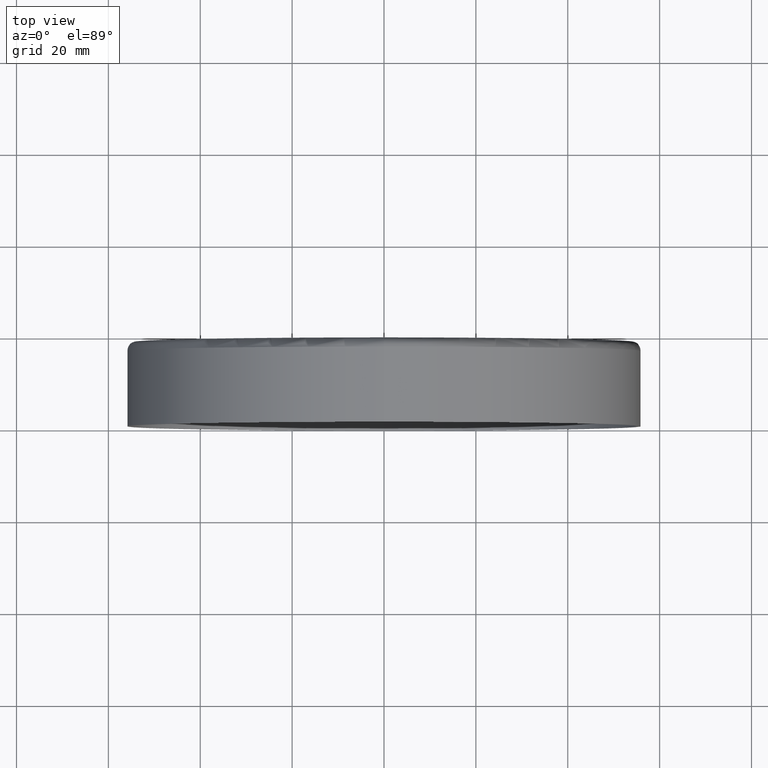
[diagram: clean part render]
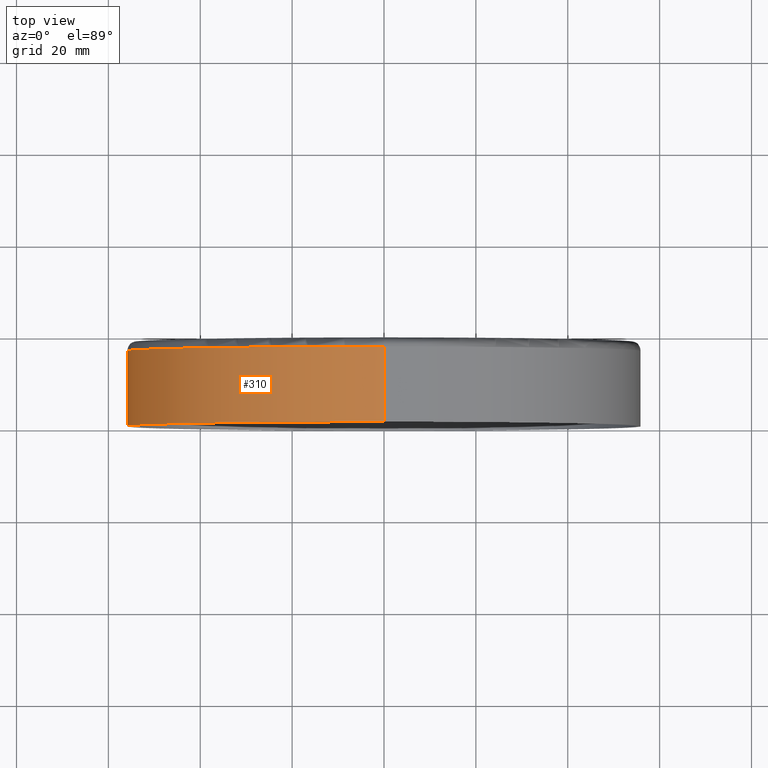
[diagram: same view with one face highlighted and labeled with its STEP entity id]
A machine part, top view. The second image highlights one B-rep face of the part: STEP entity #310.
In plain terms, the highlighted cylindrical surface (partial cylindrical patch) has radius 56 mm, axis along (-0, -1, -0).
Its self-contained STEP definition (entity closure, byte-faithful):
#15 = VERTEX_POINT ( 'NONE', #282 ) ;
#18 = EDGE_CURVE ( 'NONE', #182, #15, #235, .T. ) ;
#20 = VERTEX_POINT ( 'NONE', #274 ) ;
#36 = CARTESIAN_POINT ( 'NONE',  ( 0.0000000000000000000, 0.0000000000000000000, 0.0000000000000000000 ) ) ;
#39 = VECTOR ( 'NONE', #89, 1000.000000000000000 ) ;
#40 = DIRECTION ( 'NONE',  ( 0.0000000000000000000, 0.0000000000000000000, 1.000000000000000000 ) ) ;
#41 = DIRECTION ( 'NONE',  ( -0.0000000000000000000, -1.000000000000000000, -0.0000000000000000000 ) ) ;
#89 = DIRECTION ( 'NONE',  ( -0.0000000000000000000, -1.000000000000000000, -0.0000000000000000000 ) ) ;
#90 = DIRECTION ( 'NONE',  ( -0.0000000000000000000, -1.000000000000000000, -0.0000000000000000000 ) ) ;
#91 = CARTESIAN_POINT ( 'NONE',  ( 0.0000000000000000000, 16.39999999999999900, -56.00000000000000700 ) ) ;
#105 = EDGE_CURVE ( 'NONE', #20, #248, #351, .T. ) ;
#112 = EDGE_CURVE ( 'NONE', #20, #182, #212, .T. ) ;
#122 = CARTESIAN_POINT ( 'NONE',  ( 6.858022075225179300E-015, 18.39999999999999900, 56.00000000000000700 ) ) ;
#146 = EDGE_CURVE ( 'NONE', #15, #248, #189, .T. ) ;
#152 = CARTESIAN_POINT ( 'NONE',  ( 6.858022075225179300E-015, 0.0000000000000000000, 56.00000000000000700 ) ) ;
#170 = ORIENTED_EDGE ( 'NONE', *, *, #112, .T. ) ;
#179 = CARTESIAN_POINT ( 'NONE',  ( 0.0000000000000000000, 18.39999999999999900, -56.00000000000000700 ) ) ;
#182 = VERTEX_POINT ( 'NONE', #91 ) ;
#185 = AXIS2_PLACEMENT_3D ( 'NONE', #254, #319, #250 ) ;
#186 = DIRECTION ( 'NONE',  ( 0.0000000000000000000, 0.0000000000000000000, -1.000000000000000000 ) ) ;
#187 = DIRECTION ( 'NONE',  ( 0.0000000000000000000, 1.000000000000000000, 0.0000000000000000000 ) ) ;
#189 = CIRCLE ( 'NONE', #388, 56.00000000000000700 ) ;
#212 = CIRCLE ( 'NONE', #185, 56.00000000000000700 ) ;
#225 = ORIENTED_EDGE ( 'NONE', *, *, #146, .T. ) ;
#234 = FACE_OUTER_BOUND ( 'NONE', #379, .T. ) ;
#235 = LINE ( 'NONE', #179, #39 ) ;
#246 = CYLINDRICAL_SURFACE ( 'NONE', #305, 56.00000000000000700 ) ;
#248 = VERTEX_POINT ( 'NONE', #152 ) ;
#250 = DIRECTION ( 'NONE',  ( 0.0000000000000000000, 0.0000000000000000000, 1.000000000000000000 ) ) ;
#254 = CARTESIAN_POINT ( 'NONE',  ( 0.0000000000000000000, 16.39999999999999900, 0.0000000000000000000 ) ) ;
#268 = VECTOR ( 'NONE', #41, 1000.000000000000000 ) ;
#274 = CARTESIAN_POINT ( 'NONE',  ( 6.858022075225179300E-015, 16.39999999999999900, 56.00000000000000700 ) ) ;
#281 = CARTESIAN_POINT ( 'NONE',  ( 0.0000000000000000000, 18.39999999999999900, 0.0000000000000000000 ) ) ;
#282 = CARTESIAN_POINT ( 'NONE',  ( 0.0000000000000000000, 0.0000000000000000000, -56.00000000000000700 ) ) ;
#303 = ORIENTED_EDGE ( 'NONE', *, *, #105, .F. ) ;
#305 = AXIS2_PLACEMENT_3D ( 'NONE', #281, #90, #186 ) ;
#310 = ADVANCED_FACE ( 'NONE', ( #234 ), #246, .T. ) ;
#313 = ORIENTED_EDGE ( 'NONE', *, *, #18, .T. ) ;
#319 = DIRECTION ( 'NONE',  ( -0.0000000000000000000, -1.000000000000000000, -0.0000000000000000000 ) ) ;
#351 = LINE ( 'NONE', #122, #268 ) ;
#379 = EDGE_LOOP ( 'NONE', ( #303, #170, #313, #225 ) ) ;
#388 = AXIS2_PLACEMENT_3D ( 'NONE', #36, #187, #40 ) ;